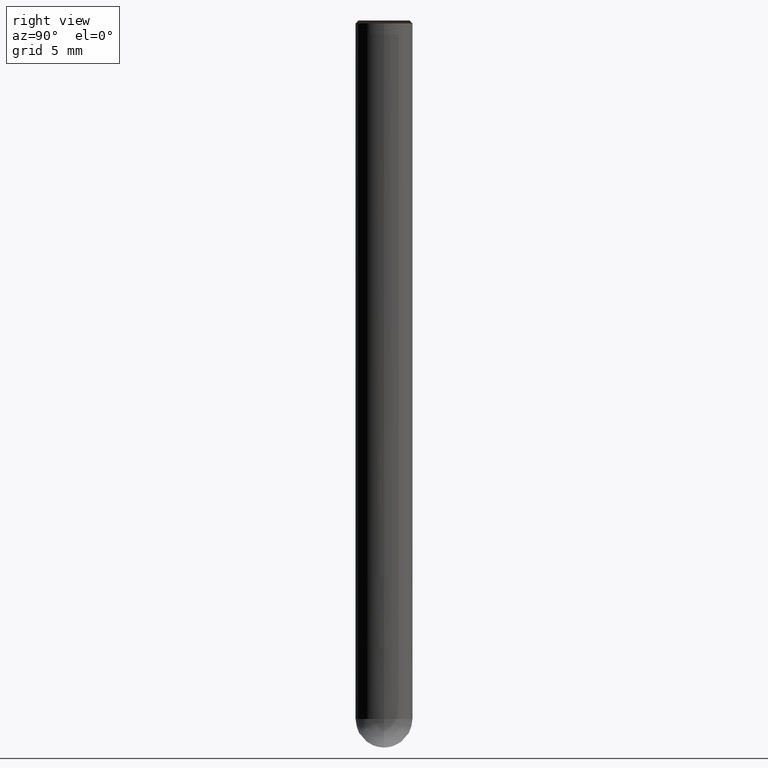
[diagram: clean part render]
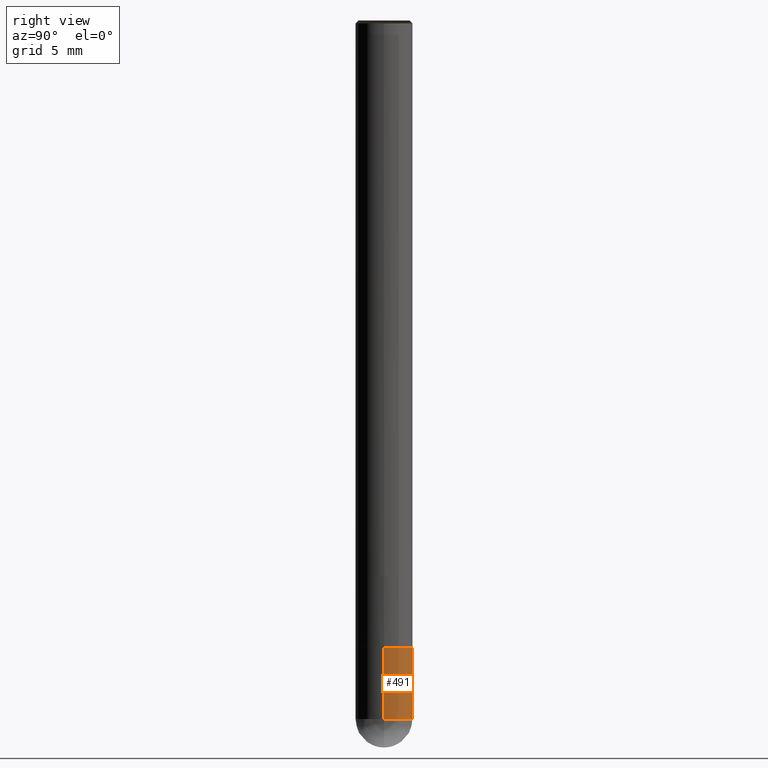
[diagram: same view with one face highlighted and labeled with its STEP entity id]
A machine part, right view. The second image highlights one B-rep face of the part: STEP entity #491.
In plain terms, the highlighted face is a freeform B-spline surface patch.
Its self-contained STEP definition (entity closure, byte-faithful):
#405=CARTESIAN_POINT('',(2.0,0.0,-10.0));
#406=CARTESIAN_POINT('',(2.0,2.0,-10.0));
#407=CARTESIAN_POINT('',(0.0,2.0,-10.0));
#408=CARTESIAN_POINT('',(-2.0,2.0,-10.0));
#409=CARTESIAN_POINT('',(-2.0,0.0,-10.0));
#410=CARTESIAN_POINT('',(2.0,0.0,-5.0));
#411=CARTESIAN_POINT('',(2.0,2.0,-5.0));
#412=CARTESIAN_POINT('',(0.0,2.0,-5.0));
#413=CARTESIAN_POINT('',(-2.0,2.0,-5.0));
#414=CARTESIAN_POINT('',(-2.0,0.0,-5.0));
#472=(
BOUNDED_SURFACE()
B_SPLINE_SURFACE(1,2,(
(#405,#406,#407,#408,#409),
(#410,#411,#412,#413,#414)
), .UNSPECIFIED.,.F.,.F.,.F.)
B_SPLINE_SURFACE_WITH_KNOTS((2,2),(3,2,3),(
0.0,1.0),(
0.0,0.5,1.0), .UNSPECIFIED.)
GEOMETRIC_REPRESENTATION_ITEM()
RATIONAL_B_SPLINE_SURFACE(((1.0,0.707106781187,1.0,0.707106781187,1.0),
(1.0,0.707106781187,1.0,0.707106781187,1.0)
))
REPRESENTATION_ITEM('')
SURFACE()
);
#473=(
BOUNDED_CURVE()
B_SPLINE_CURVE(2,(#409,#408,#407,#406,#405),.UNSPECIFIED.,.F.,.F.)
B_SPLINE_CURVE_WITH_KNOTS((3,2,3),
(0.0,0.5,1.0),.UNSPECIFIED.)
CURVE()
GEOMETRIC_REPRESENTATION_ITEM()
RATIONAL_B_SPLINE_CURVE((1.0,0.707106781187,1.0,0.707106781187,1.0))
REPRESENTATION_ITEM('')
);
#474=(
BOUNDED_CURVE()
B_SPLINE_CURVE(1,(#405,#410),.UNSPECIFIED.,.F.,.F.)
B_SPLINE_CURVE_WITH_KNOTS((2,2),
(0.0,1.0),.UNSPECIFIED.)
CURVE()
GEOMETRIC_REPRESENTATION_ITEM()
RATIONAL_B_SPLINE_CURVE((1.0,1.0))
REPRESENTATION_ITEM('')
);
#475=(
BOUNDED_CURVE()
B_SPLINE_CURVE(2,(#410,#411,#412,#413,#414),.UNSPECIFIED.,.F.,.F.)
B_SPLINE_CURVE_WITH_KNOTS((3,2,3),
(0.0,0.5,1.0),.UNSPECIFIED.)
CURVE()
GEOMETRIC_REPRESENTATION_ITEM()
RATIONAL_B_SPLINE_CURVE((1.0,0.707106781187,1.0,0.707106781187,1.0))
REPRESENTATION_ITEM('')
);
#476=(
BOUNDED_CURVE()
B_SPLINE_CURVE(1,(#414,#409),.UNSPECIFIED.,.F.,.F.)
B_SPLINE_CURVE_WITH_KNOTS((2,2),
(0.0,1.0),.UNSPECIFIED.)
CURVE()
GEOMETRIC_REPRESENTATION_ITEM()
RATIONAL_B_SPLINE_CURVE((1.0,1.0))
REPRESENTATION_ITEM('')
);
#477=VERTEX_POINT('',#405);
#478=VERTEX_POINT('',#409);
#479=VERTEX_POINT('',#410);
#480=VERTEX_POINT('',#414);
#481=EDGE_CURVE('',#478,#477,#473,.T.);
#482=EDGE_CURVE('',#477,#479,#474,.T.);
#483=EDGE_CURVE('',#479,#480,#475,.T.);
#484=EDGE_CURVE('',#480,#478,#476,.T.);
#485=ORIENTED_EDGE('',*,*,#481,.T.);
#486=ORIENTED_EDGE('',*,*,#482,.T.);
#487=ORIENTED_EDGE('',*,*,#483,.T.);
#488=ORIENTED_EDGE('',*,*,#484,.T.);
#489=EDGE_LOOP('',(#485,#486,#487,#488));
#490=FACE_OUTER_BOUND('',#489,.T.);
#491=ADVANCED_FACE('',(#490),#472,.T.);